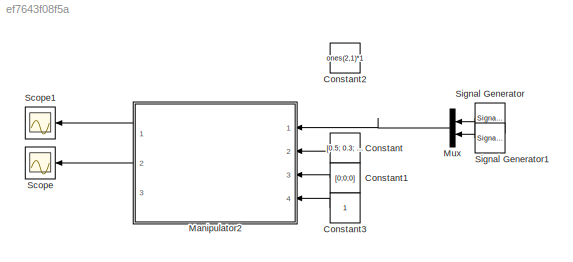
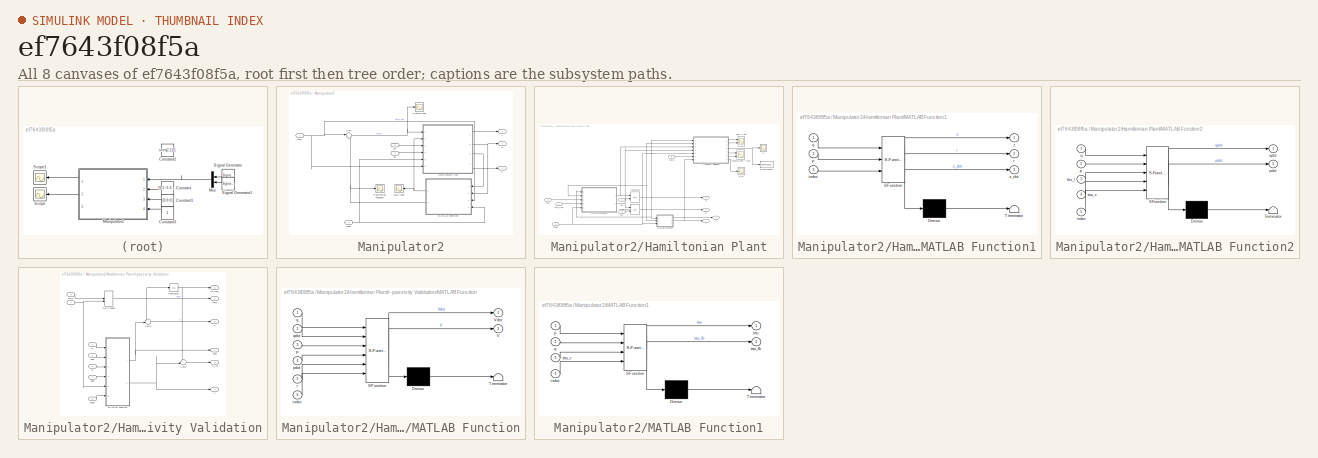
[diagram: thumbnail index - all 8 canvases of the model, root first then tree order]
MODEL slx_ef7643f08f5a
KIND model
CONFIG AbsTol = auto
CONFIG EnableMultiTasking = off
CONFIG FixedStep = auto
CONFIG MaxStep = auto
CONFIG MinStep = auto
CONFIG RelTol = 1e-3
CONFIG SampleTimeConstraint = Unconstrained
CONFIG Solver = VariableStepAuto
CONFIG SolverName = VariableStepAuto
CONFIG StartTime = 0.0
CONFIG StopTime = 10
BLOCK [Constant] Constant
  Value = [0.5; 0.3; -0.6]
BLOCK [Constant] Constant1
  Value = [0;0;0]
BLOCK [Constant] Constant2
  Value = ones(2,1)*1
BLOCK [Constant] Constant3
BLOCK [SubSystem] Manipulator2
  Ports = [4, 3]
  RequestExecContextInheritance = off
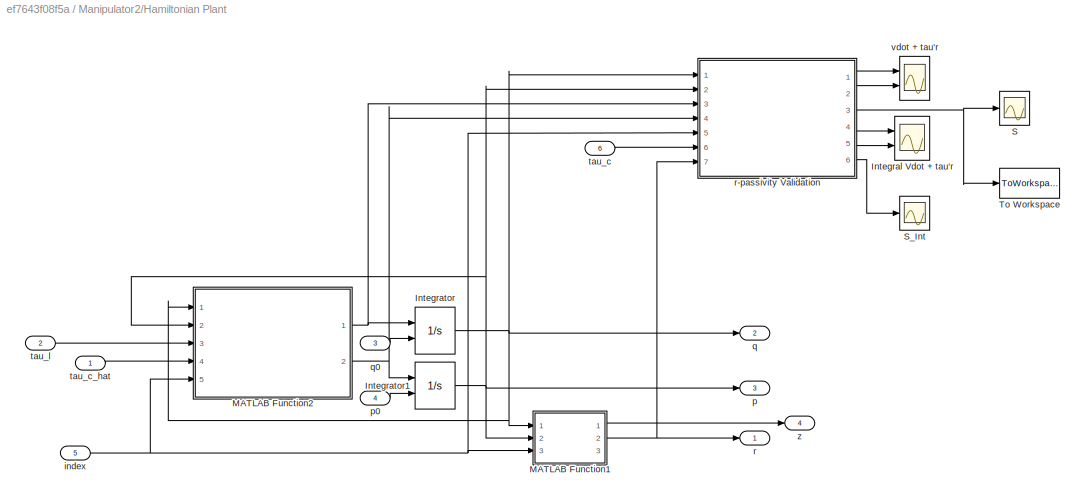
BLOCK [SubSystem] Manipulator2/Hamiltonian Plant
  Ports = [6, 4]
  RequestExecContextInheritance = off
BLOCK [Scope] Manipulator2/Hamiltonian Plant/Integral Vdot + tau'r
  Floating = off
  NumInputPorts = 2
  Ports = [2]
  ScopeSpecificationString = Simulink.scopes.TimeScopeBlockCfg('CurrentConfiguration', extmgr.ConfigurationSet(extmgr.Configuration('Core','General UI',true),extmgr.Configuration('Core','Source UI',true),extmgr.Configuration('Sources','WiredSimulink',true,'DataLoggingVariableName','ScopeData5'),extmgr.Configuration('Visuals','Time Domain',true,'SerializedDisplays',{struct('MinYLimReal','-31.59653','MaxYLimReal','3.94405','YLa...<+1578ch>
BLOCK [Integrator] Manipulator2/Hamiltonian Plant/Integrator
  InitialCondition = q01
  InitialConditionSource = external
  Ports = [2, 1]
BLOCK [Integrator] Manipulator2/Hamiltonian Plant/Integrator1
  InitialCondition = p02
  InitialConditionSource = external
  Ports = [2, 1]
BLOCK [SubSystem] Manipulator2/Hamiltonian Plant/MATLAB Function1
  ErrorFcn = Stateflow.Translate.translate
  PermitHierarchicalResolution = ExplicitOnly
  Ports = [3, 3]
  RequestExecContextInheritance = off
  SFBlockType = MATLAB Function
  TreatAsAtomicUnit = on
BLOCK [Demux] Manipulator2/Hamiltonian Plant/MATLAB Function1/ Demux 
  Outputs = 1
  Ports = [1, 1]
BLOCK [S-Function] Manipulator2/Hamiltonian Plant/MATLAB Function1/ SFunction 
  EnableBusSupport = on
  FunctionName = sf_sfun
  PortCounts = [3 4]
  Ports = [3, 4]
  SFcnIsStateOwnerBlock = off
  SFunctionDeploymentMode = off
  Tag = Stateflow S-Function SingleAgent_Manipulator 3
BLOCK [Terminator] Manipulator2/Hamiltonian Plant/MATLAB Function1/ Terminator 
BLOCK [Inport] Manipulator2/Hamiltonian Plant/MATLAB Function1/index
  IconDisplay = Port number
  Port = 3
BLOCK [Inport] Manipulator2/Hamiltonian Plant/MATLAB Function1/p
  IconDisplay = Port number
  Port = 2
BLOCK [Inport] Manipulator2/Hamiltonian Plant/MATLAB Function1/q
  IconDisplay = Port number
BLOCK [Outport] Manipulator2/Hamiltonian Plant/MATLAB Function1/r
  IconDisplay = Port number
  Port = 2
BLOCK [Outport] Manipulator2/Hamiltonian Plant/MATLAB Function1/z
  IconDisplay = Port number
BLOCK [Outport] Manipulator2/Hamiltonian Plant/MATLAB Function1/z_dot
  IconDisplay = Port number
  Port = 3
BLOCK [SubSystem] Manipulator2/Hamiltonian Plant/MATLAB Function2
  ErrorFcn = Stateflow.Translate.translate
  PermitHierarchicalResolution = ExplicitOnly
  Ports = [5, 2]
  RequestExecContextInheritance = off
  SFBlockType = MATLAB Function
  TreatAsAtomicUnit = on
BLOCK [Demux] Manipulator2/Hamiltonian Plant/MATLAB Function2/ Demux 
  Outputs = 1
  Ports = [1, 1]
BLOCK [S-Function] Manipulator2/Hamiltonian Plant/MATLAB Function2/ SFunction 
  EnableBusSupport = on
  FunctionName = sf_sfun
  PortCounts = [5 3]
  Ports = [5, 3]
  SFcnIsStateOwnerBlock = off
  SFunctionDeploymentMode = off
  Tag = Stateflow S-Function SingleAgent_Manipulator 4
BLOCK [Terminator] Manipulator2/Hamiltonian Plant/MATLAB Function2/ Terminator 
BLOCK [Inport] Manipulator2/Hamiltonian Plant/MATLAB Function2/index
  IconDisplay = Port number
  Port = 5
BLOCK [Inport] Manipulator2/Hamiltonian Plant/MATLAB Function2/p
  IconDisplay = Port number
  Port = 2
BLOCK [Outport] Manipulator2/Hamiltonian Plant/MATLAB Function2/pdot
  IconDisplay = Port number
  Port = 2
BLOCK [Inport] Manipulator2/Hamiltonian Plant/MATLAB Function2/q
  IconDisplay = Port number
BLOCK [Outport] Manipulator2/Hamiltonian Plant/MATLAB Function2/qdot
  IconDisplay = Port number
BLOCK [Inport] Manipulator2/Hamiltonian Plant/MATLAB Function2/tau_c
  IconDisplay = Port number
  Port = 4
BLOCK [Inport] Manipulator2/Hamiltonian Plant/MATLAB Function2/tau_l
  IconDisplay = Port number
  Port = 3
BLOCK [Scope] Manipulator2/Hamiltonian Plant/S
  Floating = off
  NumInputPorts = 1
  Ports = [1]
  ScopeSpecificationString = Simulink.scopes.TimeScopeBlockCfg('CurrentConfiguration', extmgr.ConfigurationSet(extmgr.Configuration('Core','General UI',true),extmgr.Configuration('Core','Source UI',true),extmgr.Configuration('Sources','WiredSimulink',true,'DataLoggingVariableName','ScopeData4'),extmgr.Configuration('Visuals','Time Domain',true,'SerializedDisplays',{struct('MinYLimReal','-0.000003','MaxYLimReal','0.000024','YL...<+1507ch>
BLOCK [Scope] Manipulator2/Hamiltonian Plant/S_Int
  Floating = off
  NumInputPorts = 1
  Ports = [1]
  ScopeSpecificationString = Simulink.scopes.TimeScopeBlockCfg('CurrentConfiguration', extmgr.ConfigurationSet(extmgr.Configuration('Core','General UI',true),extmgr.Configuration('Core','Source UI',true),extmgr.Configuration('Sources','WiredSimulink',true,'DataLoggingVariableName','ScopeData1'),extmgr.Configuration('Visuals','Time Domain',true,'SerializedDisplays',{struct('MinYLimReal','-327.91107','MaxYLimReal','36.43456','Y...<+1511ch>
BLOCK [ToWorkspace] Manipulator2/Hamiltonian Plant/To Workspace
  FixptAsFi = on
  MaxDataPoints = inf
  Ports = [1]
  SampleTime = -1
  Save2DSignal = 3-D array (concatenate along third dimension)
  SaveFormat = Timeseries
  VariableName = S_1
BLOCK [Inport] Manipulator2/Hamiltonian Plant/index
  IconDisplay = Port number
  Port = 5
BLOCK [Outport] Manipulator2/Hamiltonian Plant/p
  IconDisplay = Port number
  Port = 3
BLOCK [Inport] Manipulator2/Hamiltonian Plant/p0
  IconDisplay = Port number
  Port = 4
BLOCK [Outport] Manipulator2/Hamiltonian Plant/q
  IconDisplay = Port number
  Port = 2
BLOCK [Inport] Manipulator2/Hamiltonian Plant/q0
  IconDisplay = Port number
  Port = 3
BLOCK [Outport] Manipulator2/Hamiltonian Plant/r
  IconDisplay = Port number
BLOCK [SubSystem] Manipulator2/Hamiltonian Plant/r-passivity Validation
  Ports = [7, 6]
  RequestExecContextInheritance = off
BLOCK [DotProduct] Manipulator2/Hamiltonian Plant/r-passivity Validation/Dot Product
  OutDataTypeStr = Inherit: Inherit via internal rule
BLOCK [Integrator] Manipulator2/Hamiltonian Plant/r-passivity Validation/Integrator2
  Ports = [1, 1]
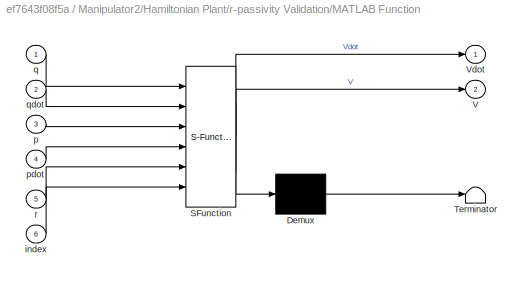
BLOCK [SubSystem] Manipulator2/Hamiltonian Plant/r-passivity Validation/MATLAB Function
  ErrorFcn = Stateflow.Translate.translate
  PermitHierarchicalResolution = ExplicitOnly
  Ports = [6, 2]
  RequestExecContextInheritance = off
  SFBlockType = MATLAB Function
  TreatAsAtomicUnit = on
BLOCK [Demux] Manipulator2/Hamiltonian Plant/r-passivity Validation/MATLAB Function/ Demux 
  Outputs = 1
  Ports = [1, 1]
BLOCK [S-Function] Manipulator2/Hamiltonian Plant/r-passivity Validation/MATLAB Function/ SFunction 
  EnableBusSupport = on
  FunctionName = sf_sfun
  Parameters = Vr0
  PortCounts = [6 3]
  Ports = [6, 3]
  SFcnIsStateOwnerBlock = off
  SFunctionDeploymentMode = off
  Tag = Stateflow S-Function SingleAgent_Manipulator 12
BLOCK [Terminator] Manipulator2/Hamiltonian Plant/r-passivity Validation/MATLAB Function/ Terminator 
BLOCK [Outport] Manipulator2/Hamiltonian Plant/r-passivity Validation/MATLAB Function/V
  IconDisplay = Port number
  Port = 2
BLOCK [Outport] Manipulator2/Hamiltonian Plant/r-passivity Validation/MATLAB Function/Vdot
  IconDisplay = Port number
BLOCK [Inport] Manipulator2/Hamiltonian Plant/r-passivity Validation/MATLAB Function/index
  IconDisplay = Port number
  Port = 6
BLOCK [Inport] Manipulator2/Hamiltonian Plant/r-passivity Validation/MATLAB Function/p
  IconDisplay = Port number
  Port = 3
BLOCK [Inport] Manipulator2/Hamiltonian Plant/r-passivity Validation/MATLAB Function/pdot
  IconDisplay = Port number
  Port = 4
BLOCK [Inport] Manipulator2/Hamiltonian Plant/r-passivity Validation/MATLAB Function/q
  IconDisplay = Port number
BLOCK [Inport] Manipulator2/Hamiltonian Plant/r-passivity Validation/MATLAB Function/qdot
  IconDisplay = Port number
  Port = 2
BLOCK [Inport] Manipulator2/Hamiltonian Plant/r-passivity Validation/MATLAB Function/r
  IconDisplay = Port number
  Port = 5
BLOCK [Outport] Manipulator2/Hamiltonian Plant/r-passivity Validation/S
  IconDisplay = Port number
  Port = 3
BLOCK [Outport] Manipulator2/Hamiltonian Plant/r-passivity Validation/S_Int
  IconDisplay = Port number
  Port = 6
BLOCK [Sum] Manipulator2/Hamiltonian Plant/r-passivity Validation/Sum2
  IconShape = round
  InputSameDT = off
  Inputs = +-|
  OutDataTypeStr = Inherit: Inherit via internal rule
  Ports = [2, 1]
  SaturateOnIntegerOverflow = off
BLOCK [Sum] Manipulator2/Hamiltonian Plant/r-passivity Validation/Sum4
  IconShape = round
  InputSameDT = off
  Inputs = +-|
  OutDataTypeStr = Inherit: Inherit via internal rule
  Ports = [2, 1]
  SaturateOnIntegerOverflow = off
BLOCK [Outport] Manipulator2/Hamiltonian Plant/r-passivity Validation/V
  IconDisplay = Port number
  Port = 4
BLOCK [Inport] Manipulator2/Hamiltonian Plant/r-passivity Validation/index
  IconDisplay = Port number
  Port = 5
BLOCK [Outport] Manipulator2/Hamiltonian Plant/r-passivity Validation/int_tau_r
  IconDisplay = Port number
  Port = 5
BLOCK [Inport] Manipulator2/Hamiltonian Plant/r-passivity Validation/p
  IconDisplay = Port number
  Port = 2
BLOCK [Inport] Manipulator2/Hamiltonian Plant/r-passivity Validation/pdot
  IconDisplay = Port number
  Port = 4
BLOCK [Inport] Manipulator2/Hamiltonian Plant/r-passivity Validation/q
  IconDisplay = Port number
BLOCK [Inport] Manipulator2/Hamiltonian Plant/r-passivity Validation/qdot
  IconDisplay = Port number
  Port = 3
BLOCK [Inport] Manipulator2/Hamiltonian Plant/r-passivity Validation/r
  IconDisplay = Port number
  Port = 7
BLOCK [Inport] Manipulator2/Hamiltonian Plant/r-passivity Validation/tau_c
  IconDisplay = Port number
  Port = 6
BLOCK [Outport] Manipulator2/Hamiltonian Plant/r-passivity Validation/tau_r
  IconDisplay = Port number
  Port = 2
BLOCK [Outport] Manipulator2/Hamiltonian Plant/r-passivity Validation/vdot
  IconDisplay = Port number
BLOCK [Inport] Manipulator2/Hamiltonian Plant/tau_c
  IconDisplay = Port number
  Port = 6
BLOCK [Inport] Manipulator2/Hamiltonian Plant/tau_c_hat
  IconDisplay = Port number
BLOCK [Inport] Manipulator2/Hamiltonian Plant/tau_l
  IconDisplay = Port number
  Port = 2
BLOCK [Scope] Manipulator2/Hamiltonian Plant/vdot + tau'r
  Floating = off
  NumInputPorts = 2
  Ports = [2]
  ScopeSpecificationString = Simulink.scopes.TimeScopeBlockCfg('CurrentConfiguration', extmgr.ConfigurationSet(extmgr.Configuration('Core','General UI',true),extmgr.Configuration('Core','Source UI',true),extmgr.Configuration('Sources','WiredSimulink',true,'DataLoggingVariableName','ScopeData3'),extmgr.Configuration('Visuals','Time Domain',true,'SerializedDisplays',{struct('MinYLimReal','-163.17397','MaxYLimReal','27.52284','Y...<+1541ch>
BLOCK [Outport] Manipulator2/Hamiltonian Plant/z
  IconDisplay = Port number
  Port = 4
BLOCK [Scope] Manipulator2/Local Input
  Floating = off
  NumInputPorts = 1
  Ports = [1]
  ScopeSpecificationString = Simulink.scopes.TimeScopeBlockCfg('CurrentConfiguration', extmgr.ConfigurationSet(extmgr.Configuration('Core','General UI',true),extmgr.Configuration('Core','Source UI',true),extmgr.Configuration('Sources','WiredSimulink',true,'DataLoggingVariableName','ScopeData1'),extmgr.Configuration('Visuals','Time Domain',true,'SerializedDisplays',{struct('MinYLimReal','-9999.03761','MaxYLimReal','27945.06696...<+1511ch>
BLOCK [SubSystem] Manipulator2/MATLAB Function1
  ErrorFcn = Stateflow.Translate.translate
  PermitHierarchicalResolution = ExplicitOnly
  Ports = [4, 2]
  RequestExecContextInheritance = off
  SFBlockType = MATLAB Function
  TreatAsAtomicUnit = on
BLOCK [Demux] Manipulator2/MATLAB Function1/ Demux 
  Outputs = 1
  Ports = [1, 1]
BLOCK [S-Function] Manipulator2/MATLAB Function1/ SFunction 
  EnableBusSupport = on
  FunctionName = sf_sfun
  PortCounts = [4 3]
  Ports = [4, 3]
  SFcnIsStateOwnerBlock = off
  SFunctionDeploymentMode = off
  Tag = Stateflow S-Function SingleAgent_Manipulator 14
BLOCK [Terminator] Manipulator2/MATLAB Function1/ Terminator 
BLOCK [Inport] Manipulator2/MATLAB Function1/index
  IconDisplay = Port number
  Port = 4
BLOCK [Inport] Manipulator2/MATLAB Function1/p
  IconDisplay = Port number
BLOCK [Inport] Manipulator2/MATLAB Function1/q
  IconDisplay = Port number
  Port = 2
BLOCK [Outport] Manipulator2/MATLAB Function1/tau
  IconDisplay = Port number
BLOCK [Inport] Manipulator2/MATLAB Function1/tau_c
  IconDisplay = Port number
  Port = 3
BLOCK [Outport] Manipulator2/MATLAB Function1/tau_fb
  IconDisplay = Port number
  Port = 2
BLOCK [Scope] Manipulator2/Passivating Feedback
  Floating = off
  NumInputPorts = 1
  Ports = [1]
  ScopeSpecificationString = Simulink.scopes.TimeScopeBlockCfg('CurrentConfiguration', extmgr.ConfigurationSet(extmgr.Configuration('Core','General UI',true),extmgr.Configuration('Core','Source UI',true),extmgr.Configuration('Sources','WiredSimulink',true,'DataLoggingVariableName','ScopeData1'),extmgr.Configuration('Visuals','Time Domain',true,'SerializedDisplays',{struct('MinYLimReal','-1.00000','MaxYLimReal','1.00000','YLab...<+1441ch>
BLOCK [Sum] Manipulator2/Sum
  IconShape = round
  InputSameDT = off
  Inputs = |++
  OutDataTypeStr = Inherit: Inherit via internal rule
  Ports = [2, 1]
  SaturateOnIntegerOverflow = off
BLOCK [Scope] Manipulator2/System Input
  Floating = off
  NumInputPorts = 1
  Ports = [1]
  ScopeSpecificationString = Simulink.scopes.TimeScopeBlockCfg('CurrentConfiguration', extmgr.ConfigurationSet(extmgr.Configuration('Core','General UI',true),extmgr.Configuration('Core','Source UI',true),extmgr.Configuration('Sources','WiredSimulink',true,'DataLoggingVariableName','ScopeData1'),extmgr.Configuration('Visuals','Time Domain',true,'SerializedDisplays',{struct('MinYLimReal','-0.09611','MaxYLimReal','0.12179','YLab...<+1430ch>
BLOCK [Inport] Manipulator2/index
  IconDisplay = Port number
  Port = 4
BLOCK [Inport] Manipulator2/p0
  IconDisplay = Port number
  Port = 3
BLOCK [Outport] Manipulator2/q
  IconDisplay = Port number
  Port = 2
BLOCK [Inport] Manipulator2/q0
  IconDisplay = Port number
  Port = 2
BLOCK [Outport] Manipulator2/r
  IconDisplay = Port number
  Port = 3
BLOCK [Inport] Manipulator2/tau_c
  IconDisplay = Port number
BLOCK [Outport] Manipulator2/z
  IconDisplay = Port number
BLOCK [Mux] Mux
  DisplayOption = bar
  Inputs = 2
  Ports = [2, 1]
BLOCK [Scope] Scope
  Floating = off
  NumInputPorts = 1
  Ports = [1]
  ScopeSpecificationString = Simulink.scopes.TimeScopeBlockCfg('CurrentConfiguration', extmgr.ConfigurationSet(extmgr.Configuration('Core','General UI',true),extmgr.Configuration('Core','Source UI',true),extmgr.Configuration('Sources','WiredSimulink',true),extmgr.Configuration('Visuals','Time Domain',true,'SerializedDisplays',{struct('MinYLimReal','-3.67431','MaxYLimReal','3.74995','YLabelReal','','MinYLimMag','0.00000','MaxY...<+1479ch>
BLOCK [Scope] Scope1
  Floating = off
  NumInputPorts = 1
  Ports = [1]
  ScopeSpecificationString = Simulink.scopes.TimeScopeBlockCfg('CurrentConfiguration', extmgr.ConfigurationSet(extmgr.Configuration('Core','General UI',true),extmgr.Configuration('Core','Source UI',true),extmgr.Configuration('Sources','WiredSimulink',true,'DataLoggingVariableName','ScopeData1'),extmgr.Configuration('Visuals','Time Domain',true,'SerializedDisplays',{struct('MinYLimReal','0.15293','MaxYLimReal','1.4021','YLabel...<+1419ch>
BLOCK [SignalGenerator] Signal Generator
  Amplitude = 0.1
  Ports = [0, 1]
  Units = rad/sec
BLOCK [SignalGenerator] Signal Generator1
  Amplitude = 0.1
  Ports = [0, 1]
  Units = rad/sec
LINE Constant1:1 -> Manipulator2:3
LINE Constant3:1 -> Manipulator2:4
LINE Constant:1 -> Manipulator2:2
NET Manipulator2/Hamiltonian Plant/Integrator1:1 -> Manipulator2/Hamiltonian Plant/MATLAB Function1:2, Manipulator2/Hamiltonian Plant/MATLAB Function2:2, Manipulator2/Hamiltonian Plant/p:1, Manipulator2/Hamiltonian Plant/r-passivity Validation:2
NET Manipulator2/Hamiltonian Plant/Integrator:1 -> Manipulator2/Hamiltonian Plant/MATLAB Function1:1, Manipulator2/Hamiltonian Plant/MATLAB Function2:1, Manipulator2/Hamiltonian Plant/q:1, Manipulator2/Hamiltonian Plant/r-passivity Validation:1
LINE Manipulator2/Hamiltonian Plant/MATLAB Function1:1 -> Manipulator2/Hamiltonian Plant/z:1
NET Manipulator2/Hamiltonian Plant/MATLAB Function1:2 -> Manipulator2/Hamiltonian Plant/r-passivity Validation:7, Manipulator2/Hamiltonian Plant/r:1
NET Manipulator2/Hamiltonian Plant/MATLAB Function2:1 -> Manipulator2/Hamiltonian Plant/Integrator:1, Manipulator2/Hamiltonian Plant/r-passivity Validation:3
NET Manipulator2/Hamiltonian Plant/MATLAB Function2:2 -> Manipulator2/Hamiltonian Plant/Integrator1:1, Manipulator2/Hamiltonian Plant/r-passivity Validation:4
NET Manipulator2/Hamiltonian Plant/index:1 -> Manipulator2/Hamiltonian Plant/MATLAB Function1:3, Manipulator2/Hamiltonian Plant/MATLAB Function2:5, Manipulator2/Hamiltonian Plant/r-passivity Validation:5
LINE Manipulator2/Hamiltonian Plant/p0:1 -> Manipulator2/Hamiltonian Plant/Integrator1:2
LINE Manipulator2/Hamiltonian Plant/q0:1 -> Manipulator2/Hamiltonian Plant/Integrator:2
NET Manipulator2/Hamiltonian Plant/r-passivity Validation/Dot Product:1 -> Manipulator2/Hamiltonian Plant/r-passivity Validation/Integrator2:1, Manipulator2/Hamiltonian Plant/r-passivity Validation/Sum4:1, Manipulator2/Hamiltonian Plant/r-passivity Validation/tau_r:1
NET Manipulator2/Hamiltonian Plant/r-passivity Validation/Integrator2:1 -> Manipulator2/Hamiltonian Plant/r-passivity Validation/Sum2:1, Manipulator2/Hamiltonian Plant/r-passivity Validation/int_tau_r:1
NET Manipulator2/Hamiltonian Plant/r-passivity Validation/MATLAB Function:1 -> Manipulator2/Hamiltonian Plant/r-passivity Validation/Sum4:2, Manipulator2/Hamiltonian Plant/r-passivity Validation/vdot:1
NET Manipulator2/Hamiltonian Plant/r-passivity Validation/MATLAB Function:2 -> Manipulator2/Hamiltonian Plant/r-passivity Validation/Sum2:2, Manipulator2/Hamiltonian Plant/r-passivity Validation/V:1
LINE Manipulator2/Hamiltonian Plant/r-passivity Validation/Sum2:1 -> Manipulator2/Hamiltonian Plant/r-passivity Validation/S_Int:1
LINE Manipulator2/Hamiltonian Plant/r-passivity Validation/Sum4:1 -> Manipulator2/Hamiltonian Plant/r-passivity Validation/S:1
LINE Manipulator2/Hamiltonian Plant/r-passivity Validation/index:1 -> Manipulator2/Hamiltonian Plant/r-passivity Validation/MATLAB Function:6
LINE Manipulator2/Hamiltonian Plant/r-passivity Validation/p:1 -> Manipulator2/Hamiltonian Plant/r-passivity Validation/MATLAB Function:3
LINE Manipulator2/Hamiltonian Plant/r-passivity Validation/pdot:1 -> Manipulator2/Hamiltonian Plant/r-passivity Validation/MATLAB Function:4
LINE Manipulator2/Hamiltonian Plant/r-passivity Validation/q:1 -> Manipulator2/Hamiltonian Plant/r-passivity Validation/MATLAB Function:1
LINE Manipulator2/Hamiltonian Plant/r-passivity Validation/qdot:1 -> Manipulator2/Hamiltonian Plant/r-passivity Validation/MATLAB Function:2
NET Manipulator2/Hamiltonian Plant/r-passivity Validation/r:1 -> Manipulator2/Hamiltonian Plant/r-passivity Validation/Dot Product:2, Manipulator2/Hamiltonian Plant/r-passivity Validation/MATLAB Function:5
LINE Manipulator2/Hamiltonian Plant/r-passivity Validation/tau_c:1 -> Manipulator2/Hamiltonian Plant/r-passivity Validation/Dot Product:1
LINE Manipulator2/Hamiltonian Plant/r-passivity Validation:1 -> Manipulator2/Hamiltonian Plant/vdot + tau'r:1
LINE Manipulator2/Hamiltonian Plant/r-passivity Validation:2 -> Manipulator2/Hamiltonian Plant/vdot + tau'r:2
NET Manipulator2/Hamiltonian Plant/r-passivity Validation:3 -> Manipulator2/Hamiltonian Plant/S:1, Manipulator2/Hamiltonian Plant/To Workspace:1
LINE Manipulator2/Hamiltonian Plant/r-passivity Validation:4 -> Manipulator2/Hamiltonian Plant/Integral Vdot + tau'r:1
LINE Manipulator2/Hamiltonian Plant/r-passivity Validation:5 -> Manipulator2/Hamiltonian Plant/Integral Vdot + tau'r:2
LINE Manipulator2/Hamiltonian Plant/r-passivity Validation:6 -> Manipulator2/Hamiltonian Plant/S_Int:1
LINE Manipulator2/Hamiltonian Plant/tau_c:1 -> Manipulator2/Hamiltonian Plant/r-passivity Validation:6
LINE Manipulator2/Hamiltonian Plant/tau_c_hat:1 -> Manipulator2/Hamiltonian Plant/MATLAB Function2:4
LINE Manipulator2/Hamiltonian Plant/tau_l:1 -> Manipulator2/Hamiltonian Plant/MATLAB Function2:3
LINE Manipulator2/Hamiltonian Plant:1 -> Manipulator2/r:1
NET Manipulator2/Hamiltonian Plant:2 -> Manipulator2/MATLAB Function1:2, Manipulator2/q:1
LINE Manipulator2/Hamiltonian Plant:3 -> Manipulator2/MATLAB Function1:1
LINE Manipulator2/Hamiltonian Plant:4 -> Manipulator2/z:1
NET Manipulator2/MATLAB Function1:1 -> Manipulator2/Hamiltonian Plant:2, Manipulator2/Local Input:1
NET Manipulator2/MATLAB Function1:2 -> Manipulator2/Passivating Feedback:1, Manipulator2/Sum:2
NET Manipulator2/Sum:1 -> Manipulator2/Hamiltonian Plant:1, Manipulator2/System Input:1
NET Manipulator2/index:1 -> Manipulator2/Hamiltonian Plant:5, Manipulator2/MATLAB Function1:4
LINE Manipulator2/p0:1 -> Manipulator2/Hamiltonian Plant:4
LINE Manipulator2/q0:1 -> Manipulator2/Hamiltonian Plant:3
NET Manipulator2/tau_c:1 -> Manipulator2/Hamiltonian Plant:6, Manipulator2/MATLAB Function1:3, Manipulator2/Sum:1
LINE Manipulator2:1 -> Scope1:1
LINE Manipulator2:2 -> Scope:1
LINE Mux:1 -> Manipulator2:1
LINE Signal Generator1:1 -> Mux:2
LINE Signal Generator:1 -> Mux:1
note: NET lines group one-source signal fan-out (src -> all destinations, sorted); 1:1 wires keep LINE
CHART Manipulator2/Hamiltonian Plant/MATLAB Function1 states=1 transitions=1
  STATE_LABEL 'eML_blk_kernel()'
  STATE_LABEL "SCRIPT:\nfunction [z, r, z_dot] = toz(q, p, index)\n\n    coder.extrinsic('Manipulator_z');\n    z = zeros(2, 1);\n    r = zeros(2, 1);\n    z_dot = zeros(2, 1);\n    [z, r, z_dot] = Manipulator_z(q, p, index);\n"
CHART Manipulator2/Hamiltonian Plant/MATLAB Function2 states=1 transitions=1
  STATE_LABEL 'eML_blk_kernel()'
  STATE_LABEL "SCRIPT:\nfunction [qdot, pdot] = fcn(q, p, tau_l, tau_c, index)\n\n    coder.extrinsic('Manipulator_Dynamics');\n    qdot = zeros(3, 1);\n    pdot = zeros(3, 1);\n    [qdot, pdot] = Manipulator_Dynamics(q, p, tau_l, tau_c, index);\n"
CHART Manipulator2/Hamiltonian Plant/r-passivity Validation/MATLAB Function states=1 transitions=1
  STATE_LABEL 'eML_blk_kernel()'
  STATE_LABEL "SCRIPT:\nfunction [Vdot, V] = fcn(q, qdot, p, pdot, r, index, Vr0)\n\n    coder.extrinsic('Manipulator_R');\n    V = 0; Vdot = 0;\n    [V, Vdot] = Manipulator_R(q, qdot,p, pdot, r, index);\n    V = V - Vr0;\nend"
CHART Manipulator2/MATLAB Function1 states=1 transitions=1
  STATE_LABEL 'eML_blk_kernel()'
  STATE_LABEL "SCRIPT:\nfunction [tau, tau_fb] = LocalControl(p, q, tau_c, index)\n    \n\ncoder.extrinsic('Manipulator_OptControl');\ntau = zeros(3, 1);\ntau_fb = zeros(2, 1);\n[tau, tau_fb] = Manipulator_OptControl(q, p, tau_c, index);\n\n"
